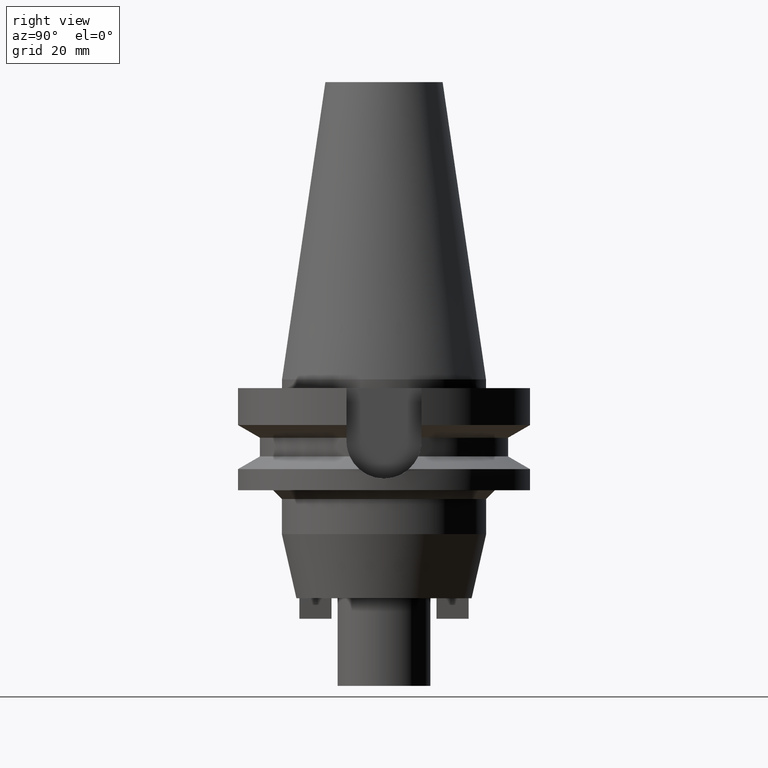
[diagram: clean part render]
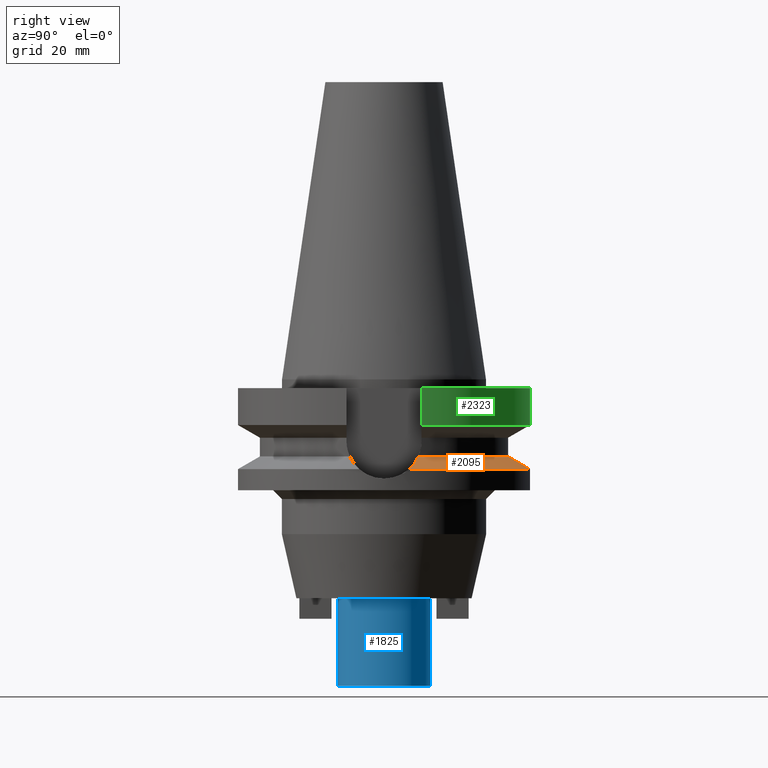
[diagram: same view with three faces highlighted in distinct colors, each labeled with its STEP entity id]
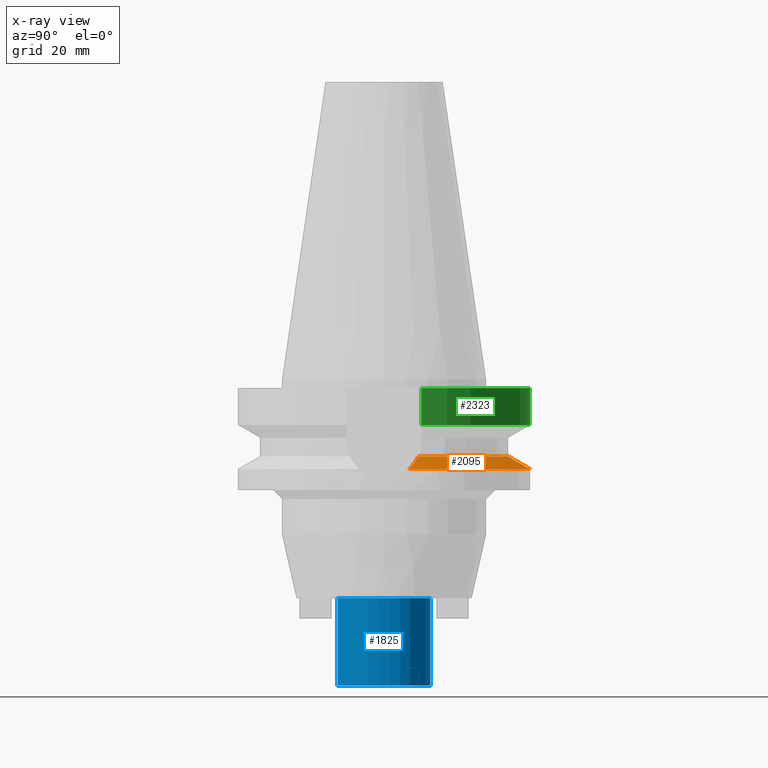
[diagram: x-ray of the same camera — body ghosted, the three highlighted faces saturated]
A machine part, right view with three faces highlighted in distinct colors.
The next image is the same camera in x-ray (body ghosted, the three faces saturated) — at least one of them is partly hidden behind the body in this view.
Their STEP definitions:

[orange] entity #2095 — the highlighted conical surface has half-angle 60 deg.
#551=CARTESIAN_POINT('',(4.926250064874E1,8.556052234130E0,-3.073730776427E1));
#665=CARTESIAN_POINT('',(-4.085052569294E1,1.172538061688E1,-2.640718074535E1));
#666=CARTESIAN_POINT('',(-4.174592150371E1,1.151744424582E1,-2.687095271989E1));
#667=CARTESIAN_POINT('',(-4.343715885249E1,1.105948033326E1,-2.774473696671E1));
#668=CARTESIAN_POINT('',(-4.566231892492E1,1.028617350250E1,-2.889039293046E1));
#669=CARTESIAN_POINT('',(-4.760809865851E1,9.448869391393E0,-2.988961119920E1));
#670=CARTESIAN_POINT('',(-4.873942464104E1,8.856227743736E0,-3.046942053224E1));
#671=CARTESIAN_POINT('',(-4.926250064874E1,8.556052234130E0,-3.073730776427E1));
#676=CARTESIAN_POINT('',(0.E0,0.E0,-3.073730776427E1));
#677=DIRECTION('',(0.E0,0.E0,-1.E0));
#678=DIRECTION('',(-9.852500129747E-1,1.711210446826E-1,0.E0));
#679=AXIS2_PLACEMENT_3D('',#676,#677,#678);
#684=CARTESIAN_POINT('',(0.E0,0.E0,-3.073730776427E1));
#685=DIRECTION('',(0.E0,0.E0,-1.E0));
#686=DIRECTION('',(0.E0,1.E0,0.E0));
#687=AXIS2_PLACEMENT_3D('',#684,#685,#686);
#692=CARTESIAN_POINT('',(4.926250064874E1,8.556052234130E0,-3.073730776427E1));
#693=CARTESIAN_POINT('',(4.845255497560E1,9.020852476566E0,-3.032250360334E1));
#694=CARTESIAN_POINT('',(4.673981446136E1,9.869581944370E0,-2.944434795393E1));
#695=CARTESIAN_POINT('',(4.392792068869E1,1.092154733257E1,-2.799810130894E1));
#696=CARTESIAN_POINT('',(4.189995098348E1,1.148167422024E1,-2.695073258384E1));
#697=CARTESIAN_POINT('',(4.085052569294E1,1.172538061688E1,-2.640718074535E1));
#702=CARTESIAN_POINT('',(0.E0,0.E0,-2.640718074535E1));
#703=DIRECTION('',(0.E0,0.E0,1.E0));
#704=DIRECTION('',(9.611888398338E-1,2.758913086325E-1,0.E0));
#705=AXIS2_PLACEMENT_3D('',#702,#703,#704);
#710=CARTESIAN_POINT('',(0.E0,0.E0,-2.640718074535E1));
#711=DIRECTION('',(0.E0,0.E0,1.E0));
#712=DIRECTION('',(0.E0,1.E0,0.E0));
#713=AXIS2_PLACEMENT_3D('',#710,#711,#712);
#728=CARTESIAN_POINT('',(4.085052569294E1,1.172538061688E1,-2.640718074535E1));
#1385=VERTEX_POINT('',#551);
#1387=CARTESIAN_POINT('',(0.E0,5.E1,-3.073730776427E1));
#1388=VERTEX_POINT('',#1387);
#1401=VERTEX_POINT('',#728);
#1406=VERTEX_POINT('',#665);
#1407=VERTEX_POINT('',#671);
#1408=CARTESIAN_POINT('',(0.E0,4.25E1,-2.640718074535E1));
#1409=VERTEX_POINT('',#1408);
#2080=CARTESIAN_POINT('',(0.E0,0.E0,-2.857224425481E1));
#2081=DIRECTION('',(0.E0,0.E0,-1.E0));
#2082=DIRECTION('',(0.E0,-1.E0,0.E0));
#2083=AXIS2_PLACEMENT_3D('',#2080,#2081,#2082);
#2084=CONICAL_SURFACE('',#2083,4.625E1,6.E1);
#2085=ORIENTED_EDGE('',*,*,#2048,.T.);
#2086=ORIENTED_EDGE('',*,*,#2075,.T.);
#2087=ORIENTED_EDGE('',*,*,#1984,.T.);
#2088=ORIENTED_EDGE('',*,*,#2017,.T.);
#2090=ORIENTED_EDGE('',*,*,#2089,.T.);
#2092=ORIENTED_EDGE('',*,*,#2091,.T.);
#2093=EDGE_LOOP('',(#2085,#2086,#2087,#2088,#2090,#2092));
#2094=FACE_OUTER_BOUND('',#2093,.F.);
#672=B_SPLINE_CURVE_WITH_KNOTS('',3,(#665,#666,#667,#668,#669,#670,#671),
.UNSPECIFIED.,.F.,.F.,(4,1,1,1,4),(0.E0,2.5E-1,5.E-1,7.5E-1,1.E0),
.UNSPECIFIED.);
#680=CIRCLE('',#679,5.E1);
#688=CIRCLE('',#687,5.E1);
#698=B_SPLINE_CURVE_WITH_KNOTS('',3,(#692,#693,#694,#695,#696,#697),
.UNSPECIFIED.,.F.,.F.,(4,1,1,4),(0.E0,3.333333333333E-1,6.666666666667E-1,1.E0),
.UNSPECIFIED.);
#706=CIRCLE('',#705,4.25E1);
#714=CIRCLE('',#713,4.25E1);
#1984=EDGE_CURVE('',#1388,#1385,#688,.T.);
#2017=EDGE_CURVE('',#1385,#1401,#698,.T.);
#2048=EDGE_CURVE('',#1406,#1407,#672,.T.);
#2075=EDGE_CURVE('',#1407,#1388,#680,.T.);
#2089=EDGE_CURVE('',#1401,#1409,#706,.T.);
#2091=EDGE_CURVE('',#1409,#1406,#714,.T.);
#2095=ADVANCED_FACE('',(#2094),#2084,.T.);

[blue] entity #1825 — the highlighted cylindrical surface (partial cylindrical patch) has radius 15.875 mm, axis along (0, 0, -1).
#322=CARTESIAN_POINT('',(0.E0,1.373318920564E-14,-1.05E2));
#323=DIRECTION('',(0.E0,0.E0,1.E0));
#324=DIRECTION('',(0.E0,-1.E0,0.E0));
#325=AXIS2_PLACEMENT_3D('',#322,#323,#324);
#354=DIRECTION('',(0.E0,0.E0,-1.E0));
#355=VECTOR('',#354,3.E1);
#356=CARTESIAN_POINT('',(0.E0,1.5875E1,-7.5E1));
#357=LINE('',#356,#355);
#361=DIRECTION('',(0.E0,0.E0,-1.E0));
#362=VECTOR('',#361,3.E1);
#363=CARTESIAN_POINT('',(0.E0,-1.5875E1,-7.5E1));
#364=LINE('',#363,#362);
#392=CARTESIAN_POINT('',(0.E0,1.373318920564E-14,-7.5E1));
#393=DIRECTION('',(0.E0,0.E0,-1.E0));
#394=DIRECTION('',(0.E0,1.E0,0.E0));
#395=AXIS2_PLACEMENT_3D('',#392,#393,#394);
#1340=CARTESIAN_POINT('',(0.E0,-1.5875E1,-1.05E2));
#1341=CARTESIAN_POINT('',(0.E0,1.5875E1,-1.05E2));
#1342=VERTEX_POINT('',#1340);
#1343=VERTEX_POINT('',#1341);
#1344=CARTESIAN_POINT('',(0.E0,1.5875E1,-7.5E1));
#1345=VERTEX_POINT('',#1344);
#1346=CARTESIAN_POINT('',(0.E0,-1.5875E1,-7.5E1));
#1347=VERTEX_POINT('',#1346);
#1811=CARTESIAN_POINT('',(0.E0,1.373318920564E-14,1.1214E2));
#1812=DIRECTION('',(0.E0,0.E0,-1.E0));
#1813=DIRECTION('',(0.E0,-1.E0,0.E0));
#1814=AXIS2_PLACEMENT_3D('',#1811,#1812,#1813);
#1815=CYLINDRICAL_SURFACE('',#1814,1.5875E1);
#1817=ORIENTED_EDGE('',*,*,#1816,.T.);
#1818=ORIENTED_EDGE('',*,*,#1800,.F.);
#1820=ORIENTED_EDGE('',*,*,#1819,.F.);
#1822=ORIENTED_EDGE('',*,*,#1821,.F.);
#1823=EDGE_LOOP('',(#1817,#1818,#1820,#1822));
#1824=FACE_OUTER_BOUND('',#1823,.F.);
#326=CIRCLE('',#325,1.5875E1);
#396=CIRCLE('',#395,1.5875E1);
#1800=EDGE_CURVE('',#1342,#1343,#326,.T.);
#1816=EDGE_CURVE('',#1345,#1343,#357,.T.);
#1819=EDGE_CURVE('',#1347,#1342,#364,.T.);
#1821=EDGE_CURVE('',#1345,#1347,#396,.T.);
#1825=ADVANCED_FACE('',(#1824),#1815,.T.);

[green] entity #2323 — the highlighted cylindrical surface (partial cylindrical patch) has radius 50 mm, axis along (0, 0, -1).
#759=CARTESIAN_POINT('',(4.832056912922E1,1.285000385325E1,-1.566265771863E1));
#813=CARTESIAN_POINT('',(0.E0,1.373318920564E-14,-3.E0));
#814=DIRECTION('',(0.E0,0.E0,-1.E0));
#815=DIRECTION('',(-9.664114030784E-1,2.57E-1,0.E0));
#816=AXIS2_PLACEMENT_3D('',#813,#814,#815);
#821=CARTESIAN_POINT('',(0.E0,1.373318920564E-14,-3.E0));
#822=DIRECTION('',(0.E0,0.E0,-1.E0));
#823=DIRECTION('',(0.E0,1.E0,0.E0));
#824=AXIS2_PLACEMENT_3D('',#821,#822,#823);
#1017=CARTESIAN_POINT('',(-4.832056912952E1,1.285000385212E1,
-1.566265772875E1));
#1038=CARTESIAN_POINT('',(0.E0,0.E0,-1.566269223573E1));
#1039=DIRECTION('',(0.E0,0.E0,1.E0));
#1040=DIRECTION('',(9.664114030784E-1,2.57E-1,0.E0));
#1041=AXIS2_PLACEMENT_3D('',#1038,#1039,#1040);
#1046=CARTESIAN_POINT('',(0.E0,0.E0,-1.566269223573E1));
#1047=DIRECTION('',(0.E0,0.E0,1.E0));
#1048=DIRECTION('',(0.E0,1.E0,0.E0));
#1049=AXIS2_PLACEMENT_3D('',#1046,#1047,#1048);
#1054=DIRECTION('',(8.089962563943E-8,3.042111688622E-7,-1.E0));
#1055=VECTOR('',#1054,1.266265772875E1);
#1056=CARTESIAN_POINT('',(-4.832057015392E1,1.285E1,-3.E0));
#1057=LINE('',#1056,#1055);
#1061=DIRECTION('',(8.092334084216E-8,-3.043003466492E-7,1.E0));
#1062=VECTOR('',#1061,1.266265771863E1);
#1063=CARTESIAN_POINT('',(4.832056912922E1,1.285000385325E1,-1.566265771863E1));
#1064=LINE('',#1063,#1062);
#1439=CARTESIAN_POINT('',(-4.832057015392E1,1.285E1,-3.E0));
#1440=VERTEX_POINT('',#1439);
#1441=CARTESIAN_POINT('',(-1.065814103640E-14,5.E1,-3.E0));
#1442=CARTESIAN_POINT('',(4.832057015392E1,1.285E1,-3.E0));
#1443=VERTEX_POINT('',#1441);
#1444=VERTEX_POINT('',#1442);
#1465=VERTEX_POINT('',#1017);
#1470=VERTEX_POINT('',#759);
#1471=CARTESIAN_POINT('',(-2.832769448824E-14,5.E1,-1.566269223573E1));
#1472=VERTEX_POINT('',#1471);
#2310=CARTESIAN_POINT('',(0.E0,1.373318920564E-14,1.1214E2));
#2311=DIRECTION('',(0.E0,0.E0,-1.E0));
#2312=DIRECTION('',(0.E0,-1.E0,0.E0));
#2313=AXIS2_PLACEMENT_3D('',#2310,#2311,#2312);
#2314=CYLINDRICAL_SURFACE('',#2313,5.E1);
#2315=ORIENTED_EDGE('',*,*,#2286,.T.);
#2316=ORIENTED_EDGE('',*,*,#2305,.F.);
#2317=ORIENTED_EDGE('',*,*,#2303,.F.);
#2318=ORIENTED_EDGE('',*,*,#2127,.T.);
#2319=ORIENTED_EDGE('',*,*,#2160,.F.);
#2320=ORIENTED_EDGE('',*,*,#2158,.F.);
#2321=EDGE_LOOP('',(#2315,#2316,#2317,#2318,#2319,#2320));
#2322=FACE_OUTER_BOUND('',#2321,.F.);
#817=CIRCLE('',#816,5.E1);
#825=CIRCLE('',#824,5.E1);
#1042=CIRCLE('',#1041,5.E1);
#1050=CIRCLE('',#1049,5.E1);
#2127=EDGE_CURVE('',#1470,#1444,#1064,.T.);
#2158=EDGE_CURVE('',#1440,#1443,#817,.T.);
#2160=EDGE_CURVE('',#1443,#1444,#825,.T.);
#2286=EDGE_CURVE('',#1440,#1465,#1057,.T.);
#2303=EDGE_CURVE('',#1470,#1472,#1042,.T.);
#2305=EDGE_CURVE('',#1472,#1465,#1050,.T.);
#2323=ADVANCED_FACE('',(#2322),#2314,.T.);